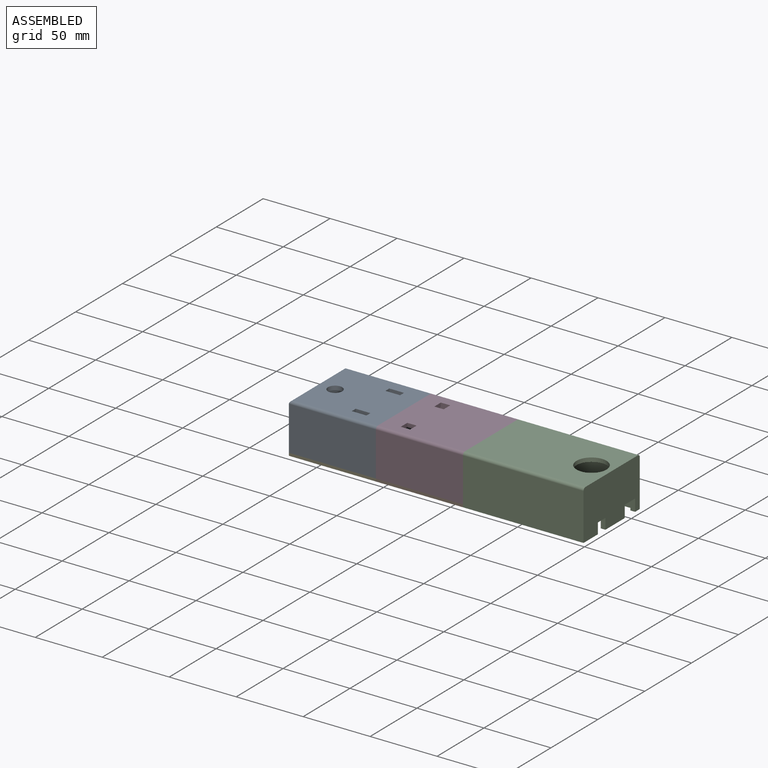
[diagram: assembled view]
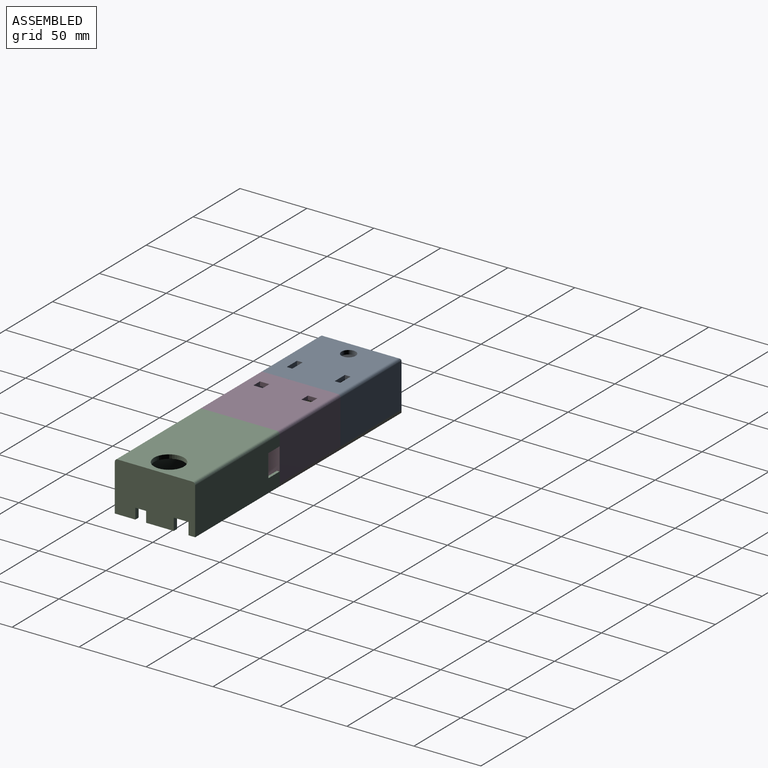
[diagram: assembled view, second angle]
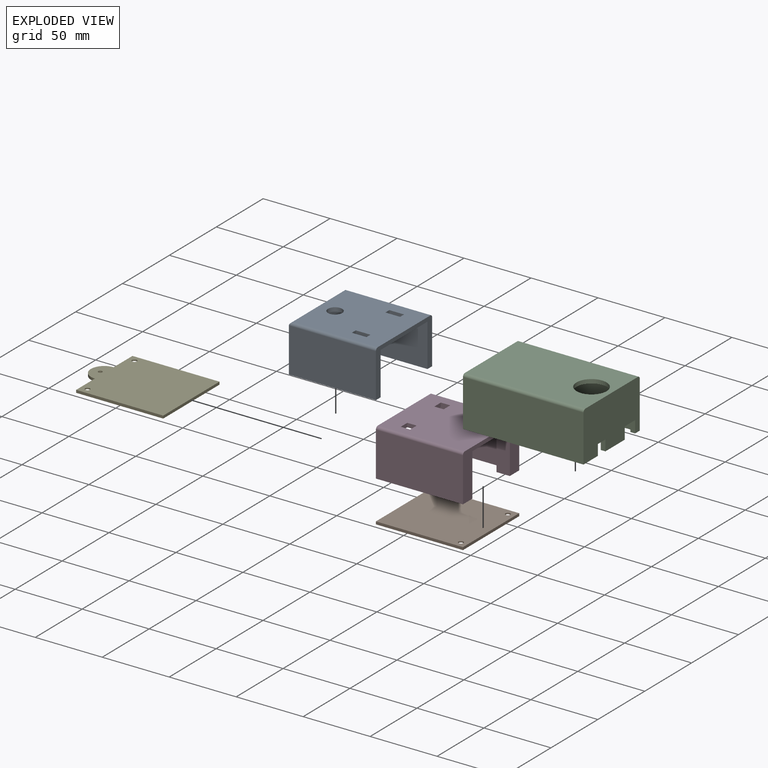
[diagram: exploded view]
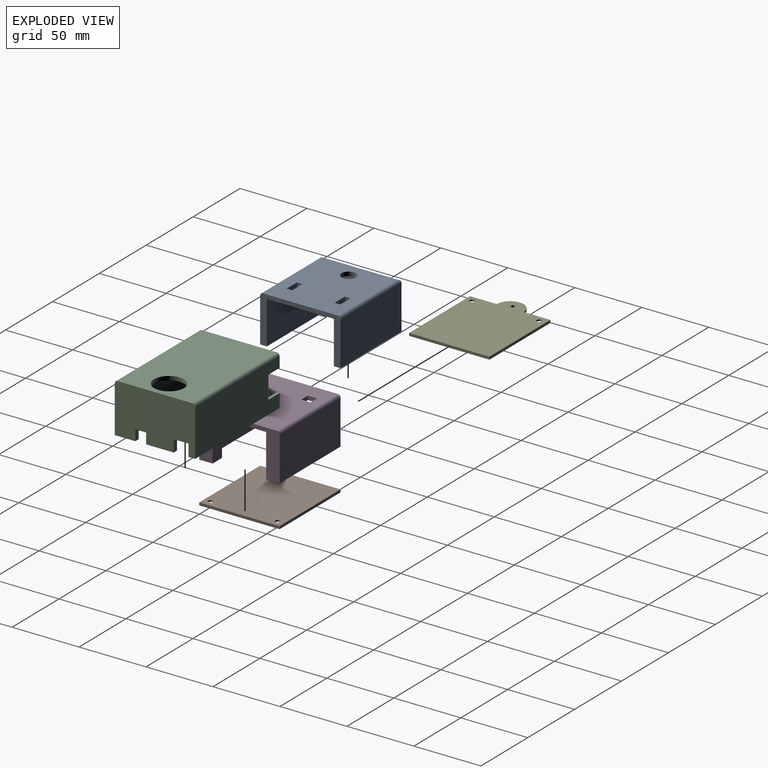
[diagram: exploded view, second angle]
ASSEMBLY  parts=5 mates=12
PART A: 30 faces, bbox 65x60x35 mm
  f0: plane 65x60mm, normal (0,0,-1), area 935.9mm2, adj f2,f3,f5,f6,f7,f8,f18,f19
  f1: plane 60x50mm, normal (0,0,-1), area 2768.6mm2, adj f2,f3,f7,f9,f10,f11,f12,f13
  f2: plane 55x32mm, normal (0,1,0), area 1760mm2, adj f0,f1,f18,f26
  f3: plane 55x32mm, normal (0,-1,0), area 1760mm2, adj f0,f1,f20,f26
  f4: plane 63x56mm, normal (0,0,1), area 3346.6mm2, adj f9,f10,f11,f12,f13,f14,f15,f16
  f5: plane 65x33mm, normal (0,-1,0), area 2145mm2, adj f0,f8,f26,f29
  f6: plane 65x33mm, normal (0,1,0), area 2145mm2, adj f0,f8,f26,f27
  f7: plane 40x32mm, normal (1,0,0), area 1280mm2, adj f0,f1,f19,f21
  f8: plane 60x33mm, normal (-1,0,0), area 1980mm2, adj f0,f5,f6,f28
  f9: plane 11x3mm, normal (0,-1,0), area 33mm2, adj f1,f4,f10,f12
  f10: plane 4.2x3mm, normal (1,0,0), area 12.6mm2, adj f1,f4,f9,f11
  f11: plane 11x3mm, normal (0,1,0), area 33mm2, adj f1,f4,f10,f12
  f12: plane 4.2x3mm, normal (-1,0,0), area 12.6mm2, adj f1,f4,f9,f11
  f13: plane 11x3mm, normal (0,-1,0), area 33mm2, adj f1,f4,f14,f16
  f14: plane 4.2x3mm, normal (1,0,0), area 12.6mm2, adj f1,f4,f13,f15
  f15: plane 11x3mm, normal (0,1,0), area 33mm2, adj f1,f4,f14,f16
  f16: plane 4.2x3mm, normal (-1,0,0), area 12.6mm2, adj f1,f4,f13,f15
  f17: cylinder r=5.32mm len=10.65mm, axis (0,0,1), area 100.3mm2, adj f1,f4
  f18: plane 32x5mm, normal (1,0,0), area 160mm2, adj f0,f1,f2,f19
  f19: plane 32x5mm, normal (0,1,0), area 160mm2, adj f0,f1,f7,f18
  f20: plane 32x5mm, normal (1,0,0), area 160mm2, adj f0,f1,f3,f21
  f21: plane 32x5mm, normal (0,-1,0), area 160mm2, adj f0,f1,f7,f20
  f22: cone r=0mm half-angle=59deg, axis (0,0,-1), area 8.2mm2, adj f23
  f23: cylinder r=1.5mm len=13.91mm, axis (0,0,-1), area 131.1mm2, adj f0,f22
  f24: cone r=0mm half-angle=59deg, axis (0,0,-1), area 8.2mm2, adj f25
  f25: cylinder r=1.5mm len=13.91mm, axis (0,0,-1), area 131.1mm2, adj f0,f24
  f26: plane 60x35mm, normal (1,0,0), area 498.3mm2, adj f0,f1,f2,f3,f4,f5,f6,f27
  f27: cylinder r=2mm len=65mm, axis (1,0,0), area 201.9mm2, adj f4,f6,f26,f28
  f28: cylinder r=2mm len=60mm, axis (0,1,0), area 183.9mm2, adj f4,f8,f27,f29
  f29: cylinder r=2mm len=65mm, axis (-1,0,0), area 201.9mm2, adj f4,f5,f26,f28
PART B: 12 faces, bbox 65x60x2 mm
  f0: plane 65x2mm, normal (0,-1,0), area 130mm2, adj f1,f3,f4,f11
  f1: plane 60x2mm, normal (1,0,0), area 120mm2, adj f0,f2,f3,f4
  f2: plane 65x2mm, normal (0,1,0), area 130mm2, adj f1,f3,f4,f11
  f3: plane 65x60mm, normal (0,0,-1), area 3801mm2, adj f0,f1,f2,f7,f10,f11
  f4: plane 65x60mm, normal (0,0,1), area 3879.6mm2, adj f0,f1,f2,f5,f8,f11
  f5: cylinder r=1.8mm len=3.6mm, axis (0,0,-1), area 11.3mm2, adj f4,f6
  f6: plane 7.94x7.94mm, normal (0,0,-1), area 39.3mm2, adj f5,f7
  f7: cylinder r=3.97mm len=7.94mm, axis (0,0,-1), area 24.9mm2, adj f3,f6
  f8: cylinder r=1.8mm len=3.6mm, axis (0,0,-1), area 11.3mm2, adj f4,f9
  f9: plane 7.94x7.94mm, normal (0,0,-1), area 39.3mm2, adj f8,f10
  f10: cylinder r=3.97mm len=7.94mm, axis (0,0,-1), area 24.9mm2, adj f3,f9
  f11: plane 60x2mm, normal (-1,0,0), area 120mm2, adj f0,f2,f3,f4
PART C: 25 faces, bbox 90x60x37 mm
  f0: plane 20.65x3.5mm, normal (0,0,-1), area 72.3mm2, adj f2,f8,f19,f23
  f1: plane 90x5mm, normal (0,0,-1), area 190.5mm2, adj f2,f3,f4,f5,f8,f20
  f2: plane 56x34mm, normal (-1,0,0), area 1741mm2, adj f0,f1,f5,f6,f11,f12,f19,f20
  f3: plane 10x2mm, normal (-1,0,0), area 20mm2, adj f1,f4,f5,f18
  f4: plane 90x35mm, normal (0,1,0), area 2946mm2, adj f1,f3,f8,f9,f14,f16,f17,f18
  f5: plane 86.5x34mm, normal (0,-1,0), area 2737mm2, adj f1,f2,f3,f9,f12,f16,f17,f18
  f6: plane 90x15.35mm, normal (0,0,-1), area 226.7mm2, adj f2,f7,f8,f9,f11,f22
  f7: plane 90x35mm, normal (0,-1,0), area 3150mm2, adj f6,f8,f9,f15
  f8: plane 60x37mm, normal (1,0,0), area 2055.3mm2, adj f0,f1,f4,f6,f7,f10,f14,f15
  f9: plane 60x37mm, normal (-1,0,0), area 260.3mm2, adj f4,f5,f6,f7,f10,f11,f12,f14
  f10: plane 90x56mm, normal (0,0,1), area 4645.9mm2, adj f8,f9,f13,f14,f15
  f11: plane 86.5x34mm, normal (0,1,0), area 2941mm2, adj f2,f6,f9,f12
  f12: plane 86.5x56mm, normal (0,0,-1), area 4449.9mm2, adj f2,f5,f9,f11,f13
  f13: cylinder r=11.2mm len=22.4mm, axis (0,0,1), area 211.1mm2, adj f10,f12
  f14: cylinder r=2mm len=90mm, axis (1,0,0), area 282.7mm2, adj f4,f8,f9,f10
  f15: cylinder r=2mm len=90mm, axis (-1,0,0), area 282.7mm2, adj f7,f8,f9,f10
  f16: plane 12x2mm, normal (0,0,-1), area 24mm2, adj f4,f5,f9,f17
  f17: plane 17x2mm, normal (-1,0,0), area 34mm2, adj f4,f5,f16,f18
  f18: plane 12x2mm, normal (0,0,1), area 24mm2, adj f3,f4,f5,f17
  f19: plane 9x3.5mm, normal (0,1,0), area 31.5mm2, adj f0,f2,f8,f21
  f20: plane 9x3.5mm, normal (0,-1,0), area 31.5mm2, adj f1,f2,f8,f21
  f21: plane 11x3.5mm, normal (0,0,-1), area 38.5mm2, adj f2,f8,f19,f20
  f22: plane 8x3.5mm, normal (0,1,0), area 28mm2, adj f2,f6,f8,f24
  f23: plane 8x3.5mm, normal (0,-1,0), area 28mm2, adj f0,f2,f8,f24
  f24: plane 8x3.5mm, normal (0,0,-1), area 28mm2, adj f2,f8,f22,f23
PART D: 28 faces, bbox 65x60x35 mm
  f0: plane 65x10mm, normal (0,0,-1), area 201.4mm2, adj f2,f6,f7,f19,f20,f22,f25
  f1: plane 65x56mm, normal (0,0,-1), area 3382mm2, adj f2,f3,f7,f9,f10,f11,f12,f13
  f2: plane 55x32mm, normal (0,1,0), area 1760mm2, adj f0,f1,f19,f25
  f3: plane 55x32mm, normal (0,-1,0), area 1760mm2, adj f1,f5,f17,f25
  f4: plane 65x56mm, normal (0,0,1), area 3542mm2, adj f7,f9,f10,f11,f12,f13,f14,f15
  f5: plane 65x10mm, normal (0,0,-1), area 201.4mm2, adj f3,f7,f8,f17,f18,f24,f25
  f6: plane 65x33mm, normal (0,-1,0), area 2145mm2, adj f0,f7,f25,f26
  f7: plane 60x35mm, normal (1,0,0), area 818.3mm2, adj f0,f1,f4,f5,f6,f8,f18,f20
  f8: plane 65x33mm, normal (0,1,0), area 2145mm2, adj f5,f7,f25,f27
  f9: plane 7x3mm, normal (0,1,0), area 21mm2, adj f1,f4,f10,f12
  f10: plane 7x3mm, normal (-1,0,0), area 21mm2, adj f1,f4,f9,f11
  f11: plane 7x3mm, normal (0,-1,0), area 21mm2, adj f1,f4,f10,f12
  f12: plane 7x3mm, normal (1,0,0), area 21mm2, adj f1,f4,f9,f11
  f13: plane 7x3mm, normal (0,1,0), area 21mm2, adj f1,f4,f14,f16
  f14: plane 7x3mm, normal (-1,0,0), area 21mm2, adj f1,f4,f13,f15
  f15: plane 7x3mm, normal (0,-1,0), area 21mm2, adj f1,f4,f14,f16
  f16: plane 7x3mm, normal (1,0,0), area 21mm2, adj f1,f4,f13,f15
  f17: plane 32x8mm, normal (-1,0,0), area 256mm2, adj f1,f3,f5,f18
  f18: plane 32x10mm, normal (0,-1,0), area 320mm2, adj f1,f5,f7,f17
  f19: plane 32x8mm, normal (-1,0,0), area 256mm2, adj f0,f1,f2,f20
  f20: plane 32x10mm, normal (0,1,0), area 320mm2, adj f0,f1,f7,f19
  f21: cone r=0mm half-angle=59deg, axis (0,0,-1), area 10mm2, adj f22
  f22: cylinder r=1.65mm len=13.91mm, axis (0,0,-1), area 144.2mm2, adj f0,f21
  f23: cone r=0mm half-angle=59deg, axis (0,0,-1), area 10mm2, adj f24
  f24: cylinder r=1.65mm len=13.91mm, axis (0,0,-1), area 144.2mm2, adj f5,f23
  f25: plane 60x35mm, normal (-1,0,0), area 306.3mm2, adj f0,f1,f2,f3,f4,f5,f6,f8
  f26: cylinder r=2mm len=65mm, axis (-1,0,0), area 204.2mm2, adj f4,f6,f7,f25
  f27: cylinder r=2mm len=65mm, axis (1,0,0), area 204.2mm2, adj f4,f7,f8,f25
PART E: 15 faces, bbox 75x60x2 mm
  f0: plane 65x2mm, normal (0,-1,0), area 130mm2, adj f2,f3,f6,f14
  f1: plane 65x2mm, normal (0,1,0), area 130mm2, adj f2,f3,f4,f14
  f2: plane 75x60mm, normal (0,0,-1), area 3951mm2, adj f0,f1,f4,f5,f6,f7,f10,f13
  f3: plane 75x60mm, normal (0,0,1), area 4029.7mm2, adj f0,f1,f4,f5,f6,f7,f8,f11
  f4: plane 20x2mm, normal (-1,0,0), area 40mm2, adj f1,f2,f3,f5
  f5: cylinder r=10mm len=20mm, axis (0,0,1), area 62.8mm2, adj f2,f3,f4,f6
  f6: plane 20x2mm, normal (-1,0,0), area 40mm2, adj f0,f2,f3,f5
  f7: cylinder r=1.5mm len=3mm, axis (0,0,-1), area 18.8mm2, adj f2,f3
  f8: cylinder r=1.8mm len=3.6mm, axis (0,0,-1), area 11.3mm2, adj f3,f9
  f9: plane 7.94x7.94mm, normal (0,0,-1), area 39.3mm2, adj f8,f10
  f10: cylinder r=3.97mm len=7.94mm, axis (0,0,-1), area 24.9mm2, adj f2,f9
  f11: cylinder r=1.8mm len=3.6mm, axis (0,0,-1), area 11.3mm2, adj f3,f12
  f12: plane 7.94x7.94mm, normal (0,0,-1), area 39.3mm2, adj f11,f13
  f13: cylinder r=3.97mm len=7.94mm, axis (0,0,-1), area 24.9mm2, adj f2,f12
  f14: plane 60x2mm, normal (1,0,0), area 120mm2, adj f0,f1,f2,f3
PLACE A t=(-18.69,-22.89,69.97)mm
PLACE B t=(-18.69,-22.89,69.97)mm
PLACE C t=(91.31,-22.89,67.97)mm
PLACE D t=(-18.69,-22.89,69.97)mm
PLACE E t=(-18.69,-22.89,69.97)mm
MATE planar E.f0 <-> B.f0  axis (0,-1,0) through (-51.19,-52.89,68.97)mm
MATE planar B.f4 <-> D.f5  axis (0,0,1) through (13.67,-22.89,69.97)mm
MATE planar C.f10 <-> D.f4  axis (0,0,1) through (88.77,-22.89,104.97)mm
MATE planar E.f3 <-> A.f0  axis (0,0,1) through (-52.42,-22.89,69.97)mm
MATE planar C.f9 <-> D.f7  axis (-1,0,0) through (46.31,-52.89,85.47)mm
MATE planar B.f11 <-> E.f14  axis (-1,0,0) through (-18.69,-22.89,68.97)mm
MATE planar A.f0 <-> D.f0  axis (0,0,-1) through (-60.12,-22.89,69.97)mm
MATE planar D.f6 <-> C.f7  axis (0,-1,0) through (13.81,-52.89,86.47)mm
MATE planar A.f26 <-> D.f25  axis (1,0,0) through (-18.69,-22.89,92.22)mm
MATE planar A.f8 <-> E.f6  axis (-1,0,0) through (-83.69,-22.89,86.47)mm
MATE planar A.f6 <-> D.f8  axis (0,1,0) through (-51.19,7.11,86.47)mm
MATE planar E.f0 <-> D.f6  axis (0,-1,0) through (-51.19,-52.89,68.97)mm
